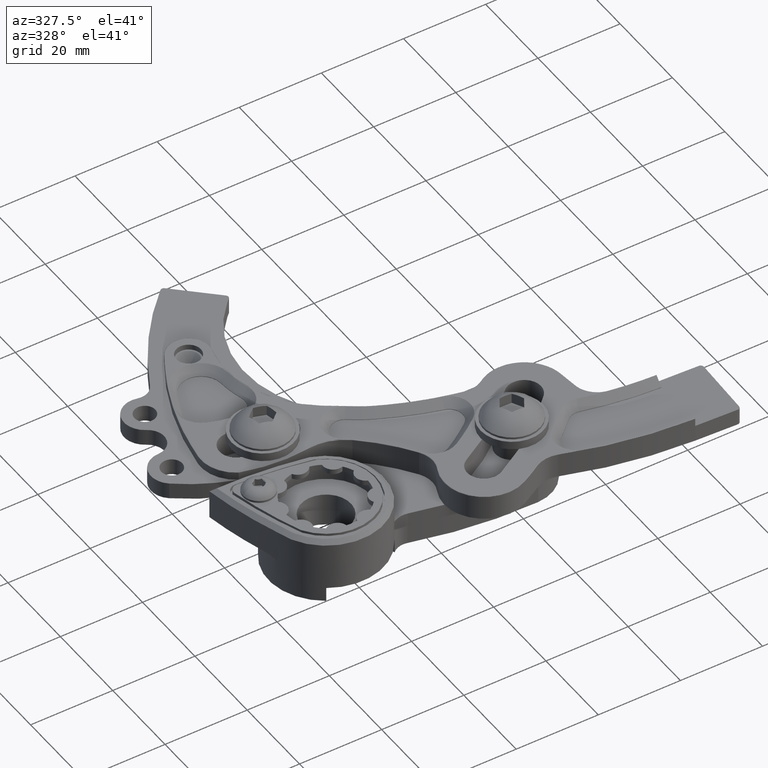
[diagram: clean part render]
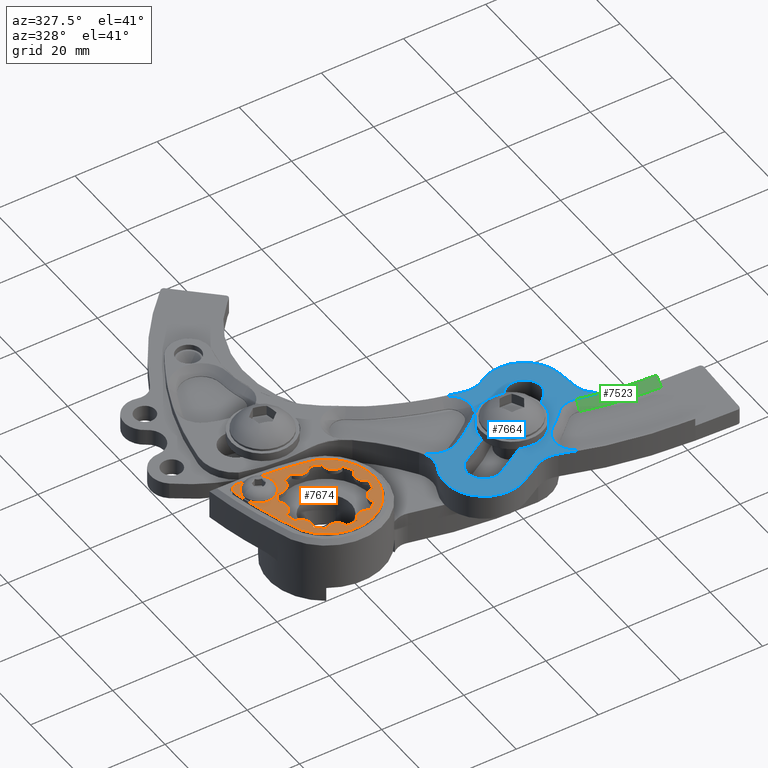
[diagram: same view with three faces highlighted in distinct colors, each labeled with its STEP entity id]
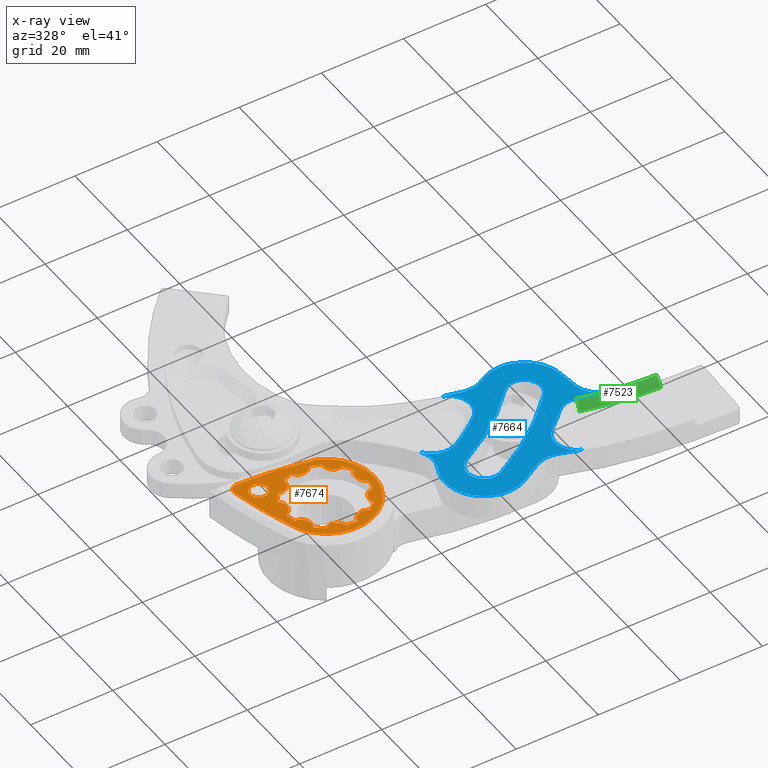
[diagram: x-ray of the same camera — body ghosted, the three highlighted faces saturated]
A machine part, auxiliary view with three faces highlighted in distinct colors.
The next image is the same camera in x-ray (body ghosted, the three faces saturated) — at least one of them is partly hidden behind the body in this view.
Their STEP definitions:

[orange] entity #7674 — the highlighted planar face has unit normal (0, 0, -1).
#106 = CIRCLE ( 'NONE', #2451, 3.985000488875817900 ) ;
#112 = CIRCLE ( 'NONE', #2452, 0.4611811023622030500 ) ;
#114 = CIRCLE ( 'NONE', #2453, 0.08374015748031497800 ) ;
#307 = FACE_BOUND ( 'NONE', #5723, .T. ) ;
#948 = CIRCLE ( 'NONE', #8326, 0.09842519685039379000 ) ;
#951 = CIRCLE ( 'NONE', #8325, 0.3917322834645669500 ) ;
#1211 = FACE_BOUND ( 'NONE', #5722, .T. ) ;
#1529 = CARTESIAN_POINT ( 'NONE',  ( -0.3737044721611517100, -0.1174697807741158900, 0.0000000000000000000 ) ) ;
#1540 = CARTESIAN_POINT ( 'NONE',  ( 0.1502255315932261000, -0.3617823538619545100, 0.0000000000000000000 ) ) ;
#1543 = CARTESIAN_POINT ( 'NONE',  ( -0.3884254748819968600, 0.05079205027422158800, 0.0000000000000000000 ) ) ;
#1545 = CARTESIAN_POINT ( 'NONE',  ( -0.1805782514277598200, 0.3476286481572780600, 0.0000000000000000000 ) ) ;
#1546 = CARTESIAN_POINT ( 'NONE',  ( 0.08512042175320269600, 0.3823724567864696900, 0.0000000000000000000 ) ) ;
#1547 = CARTESIAN_POINT ( 'NONE',  ( -0.01742897097123137200, 0.3913443661013247800, 0.0000000000000000000 ) ) ;
#1569 = CARTESIAN_POINT ( 'NONE',  ( 0.3476286481572807800, -0.1805782514277544700, 0.0000000000000000000 ) ) ;
#1574 = CARTESIAN_POINT ( 'NONE',  ( -0.2649026760123583400, 0.2885840504079449400, 0.0000000000000000000 ) ) ;
#1576 = CARTESIAN_POINT ( 'NONE',  ( -0.3337936621227553000, -0.3182291631869964600, 0.0000000000000000000 ) ) ;
#1577 = CARTESIAN_POINT ( 'NONE',  ( -0.2107661146735653700, -0.3301996771860525900, 0.0000000000000000000 ) ) ;
#1578 = CARTESIAN_POINT ( 'NONE',  ( 0.3913443661013252300, -0.01742897097122547400, 0.0000000000000000000 ) ) ;
#1585 = CARTESIAN_POINT ( 'NONE',  ( 0.2381999432887707800, 0.3109903035877328300, 0.0000000000000000000 ) ) ;
#1586 = CARTESIAN_POINT ( 'NONE',  ( 0.3823724567864685300, 0.08512042175320833100, 0.0000000000000000000 ) ) ;
#1587 = CARTESIAN_POINT ( 'NONE',  ( 0.3590586446260993800, -0.6438766151596402300, 0.0000000000000000000 ) ) ;
#1592 = CARTESIAN_POINT ( 'NONE',  ( 0.2589556442495657400, -0.6905190210382914400, 0.0000000000000000000 ) ) ;
#1594 = CARTESIAN_POINT ( 'NONE',  ( -0.1174697807741101700, -0.3737044721611534300, 0.0000000000000000000 ) ) ;
#1605 = CARTESIAN_POINT ( 'NONE',  ( -0.3617823538619567800, 0.1502255315932206100, 0.0000000000000000000 ) ) ;
#1611 = CARTESIAN_POINT ( 'NONE',  ( 0.3109903035877292200, 0.2381999432887755000, 0.0000000000000000000 ) ) ;
#1617 = CARTESIAN_POINT ( 'NONE',  ( -0.3301996771860494200, -0.2107661146735703400, 0.0000000000000000000 ) ) ;
#1620 = CARTESIAN_POINT ( 'NONE',  ( 0.4561326280009242500, 0.06805170717174031900, 0.0000000000000000000 ) ) ;
#1632 = CARTESIAN_POINT ( 'NONE',  ( 0.05079205027422756300, -0.3884254748819960200, 0.0000000000000000000 ) ) ;
#1634 = CARTESIAN_POINT ( 'NONE',  ( 0.2885840504079490400, -0.2649026760123540100, 0.0000000000000000000 ) ) ;
#1767 = CARTESIAN_POINT ( 'NONE',  ( 2.073889257765729100, 2.857190785987878000, 0.0000000000000000000 ) ) ;
#1768 = DIRECTION ( 'NONE',  ( 0.0000000000000000000, 0.0000000000000000000, 1.000000000000000000 ) ) ;
#1769 = DIRECTION ( 'NONE',  ( 1.000000000000000000, 0.0000000000000000000, 0.0000000000000000000 ) ) ;
#1773 = CARTESIAN_POINT ( 'NONE',  ( 1.092739197465705300E-015, -1.365923996832131600E-016, 0.0000000000000000000 ) ) ;
#1774 = DIRECTION ( 'NONE',  ( 0.0000000000000000000, 0.0000000000000000000, 1.000000000000000000 ) ) ;
#1775 = DIRECTION ( 'NONE',  ( 1.000000000000000000, 0.0000000000000000000, 0.0000000000000000000 ) ) ;
#1777 = CARTESIAN_POINT ( 'NONE',  ( 0.2298964812077702600, -0.4974140398124422500, 0.0000000000000000000 ) ) ;
#1778 = DIRECTION ( 'NONE',  ( 0.0000000000000000000, 0.0000000000000000000, 1.000000000000000000 ) ) ;
#1779 = DIRECTION ( 'NONE',  ( 1.000000000000000000, 0.0000000000000000000, 0.0000000000000000000 ) ) ;
#1971 = CARTESIAN_POINT ( 'NONE',  ( 0.0000000000000000000, 0.0000000000000000000, 0.0000000000000000000 ) ) ;
#1972 = DIRECTION ( 'NONE',  ( 0.0000000000000000000, 0.0000000000000000000, 1.000000000000000000 ) ) ;
#1973 = DIRECTION ( 'NONE',  ( 1.000000000000000000, 0.0000000000000000000, 0.0000000000000000000 ) ) ;
#1975 = CARTESIAN_POINT ( 'NONE',  ( 0.4183143342196762900, -0.1120869880365216000, 0.0000000000000000000 ) ) ;
#1976 = DIRECTION ( 'NONE',  ( -0.0000000000000000000, -0.0000000000000000000, -1.000000000000000000 ) ) ;
#1977 = DIRECTION ( 'NONE',  ( 1.000000000000000000, 0.0000000000000000000, 0.0000000000000000000 ) ) ;
#2188 = EDGE_CURVE ( 'NONE', #7099, #7117, #106, .T. ) ;
#2191 = EDGE_CURVE ( 'NONE', #7149, #7099, #112, .T. ) ;
#2192 = EDGE_CURVE ( 'NONE', #4857, #4857, #114, .T. ) ;
#2451 = AXIS2_PLACEMENT_3D ( 'NONE', #1767, #1768, #1769 ) ;
#2452 = AXIS2_PLACEMENT_3D ( 'NONE', #1773, #1774, #1775 ) ;
#2453 = AXIS2_PLACEMENT_3D ( 'NONE', #1777, #1778, #1779 ) ;
#2908 = EDGE_CURVE ( 'NONE', #7119, #7163, #4841, .T. ) ;
#2911 = EDGE_CURVE ( 'NONE', #7145, #7101, #4839, .T. ) ;
#2914 = EDGE_CURVE ( 'NONE', #5698, #7165, #4837, .T. ) ;
#2920 = EDGE_CURVE ( 'NONE', #7163, #5698, #4833, .T. ) ;
#2932 = EDGE_CURVE ( 'NONE', #5663, #7145, #4825, .T. ) ;
#4025 = DIRECTION ( 'NONE',  ( 0.0000000000000000000, 0.0000000000000000000, 1.000000000000000000 ) ) ;
#4029 = CARTESIAN_POINT ( 'NONE',  ( -1.760902721645291300, 0.1239377470939716400, 0.0000000000000000000 ) ) ;
#4030 = PLANE ( 'NONE',  #8450 ) ;
#4031 = DIRECTION ( 'NONE',  ( 1.000000000000000000, 0.0000000000000000000, -0.0000000000000000000 ) ) ;
#4257 = FACE_OUTER_BOUND ( 'NONE', #5666, .T. ) ;
#4483 = CIRCLE ( 'NONE', #8560, 0.09842519685039379000 ) ;
#4484 = CIRCLE ( 'NONE', #8563, 0.09842519685039379000 ) ;
#4490 = CIRCLE ( 'NONE', #8567, 0.07000000000000007600 ) ;
#4491 = CIRCLE ( 'NONE', #8571, 0.3917322834645669500 ) ;
#4498 = CIRCLE ( 'NONE', #8572, 3.982000488875817800 ) ;
#4506 = CIRCLE ( 'NONE', #8574, 0.3917322834645669500 ) ;
#4745 = CIRCLE ( 'NONE', #8635, 0.3917322834645669500 ) ;
#4751 = CIRCLE ( 'NONE', #8632, 0.09842519685039379000 ) ;
#4757 = CIRCLE ( 'NONE', #8634, 0.09842519685039376200 ) ;
#4775 = CIRCLE ( 'NONE', #8637, 0.3917322834645669500 ) ;
#4813 = CIRCLE ( 'NONE', #8651, 0.3917322834645669000 ) ;
#4821 = CIRCLE ( 'NONE', #8655, 0.09842519685039385900 ) ;
#4825 = CIRCLE ( 'NONE', #8657, 0.3917322834645669500 ) ;
#4833 = CIRCLE ( 'NONE', #8661, 0.3917322834645669500 ) ;
#4837 = CIRCLE ( 'NONE', #8663, 0.09842519685039379000 ) ;
#4839 = CIRCLE ( 'NONE', #8664, 0.09842519685039385900 ) ;
#4841 = CIRCLE ( 'NONE', #8665, 0.09842519685039387300 ) ;
#4842 = CIRCLE ( 'NONE', #8666, 0.3917322834645669500 ) ;
#4857 = VERTEX_POINT ( 'NONE', #6743 ) ;
#5663 = VERTEX_POINT ( 'NONE', #1529 ) ;
#5666 = EDGE_LOOP ( 'NONE', ( #7078, #7077, #7076, #7075 ) ) ;
#5698 = VERTEX_POINT ( 'NONE', #1540 ) ;
#5707 = VERTEX_POINT ( 'NONE', #1543 ) ;
#5721 = VERTEX_POINT ( 'NONE', #1545 ) ;
#5722 = EDGE_LOOP ( 'NONE', ( #6844 ) ) ;
#5723 = EDGE_LOOP ( 'NONE', ( #7068, #7065, #7067, #7070, #7059, #7066, #7074, #7057, #7073, #7072, #7086, #7085, #7084, #7083, #7082, #7081, #7080, #7079 ) ) ;
#5726 = VERTEX_POINT ( 'NONE', #1546 ) ;
#5730 = VERTEX_POINT ( 'NONE', #1547 ) ;
#5922 = CARTESIAN_POINT ( 'NONE',  ( 0.3924954983229573800, 0.1830236566593610700, 0.0000000000000000000 ) ) ;
#5923 = DIRECTION ( 'NONE',  ( -0.0000000000000000000, -0.0000000000000000000, -1.000000000000000000 ) ) ;
#5924 = DIRECTION ( 'NONE',  ( 1.000000000000000000, 0.0000000000000000000, 0.0000000000000000000 ) ) ;
#5931 = CARTESIAN_POINT ( 'NONE',  ( 0.1830236566593550800, 0.3924954983229601000, 0.0000000000000000000 ) ) ;
#5932 = DIRECTION ( 'NONE',  ( -0.0000000000000000000, -0.0000000000000000000, -1.000000000000000000 ) ) ;
#5933 = DIRECTION ( 'NONE',  ( 1.000000000000000000, 0.0000000000000000000, 0.0000000000000000000 ) ) ;
#5943 = CARTESIAN_POINT ( 'NONE',  ( 0.2908365319184079700, -0.6282004122488883400, 0.0000000000000000000 ) ) ;
#5944 = DIRECTION ( 'NONE',  ( 0.0000000000000000000, 0.0000000000000000000, 1.000000000000000000 ) ) ;
#5945 = DIRECTION ( 'NONE',  ( -1.000000000000000000, 0.0000000000000000000, 0.0000000000000000000 ) ) ;
#5959 = CARTESIAN_POINT ( 'NONE',  ( 0.0000000000000000000, 0.0000000000000000000, 0.0000000000000000000 ) ) ;
#5960 = DIRECTION ( 'NONE',  ( 0.0000000000000000000, 0.0000000000000000000, 1.000000000000000000 ) ) ;
#5961 = DIRECTION ( 'NONE',  ( 1.000000000000000000, 0.0000000000000000000, 0.0000000000000000000 ) ) ;
#5966 = CARTESIAN_POINT ( 'NONE',  ( -3.521805443290583900, 0.2478754941879434100, 0.0000000000000000000 ) ) ;
#5967 = DIRECTION ( 'NONE',  ( 0.0000000000000000000, 0.0000000000000000000, 1.000000000000000000 ) ) ;
#5968 = DIRECTION ( 'NONE',  ( 1.000000000000000000, 0.0000000000000000000, 0.0000000000000000000 ) ) ;
#5980 = CARTESIAN_POINT ( 'NONE',  ( 0.0000000000000000000, 0.0000000000000000000, 0.0000000000000000000 ) ) ;
#5981 = DIRECTION ( 'NONE',  ( 0.0000000000000000000, 0.0000000000000000000, 1.000000000000000000 ) ) ;
#5982 = DIRECTION ( 'NONE',  ( 1.000000000000000000, 0.0000000000000000000, 0.0000000000000000000 ) ) ;
#6452 = CARTESIAN_POINT ( 'NONE',  ( -0.3547508853220062700, 0.2483992440890331300, 0.0000000000000000000 ) ) ;
#6453 = DIRECTION ( 'NONE',  ( -0.0000000000000000000, -0.0000000000000000000, -1.000000000000000000 ) ) ;
#6455 = DIRECTION ( 'NONE',  ( 1.000000000000000000, 0.0000000000000000000, 0.0000000000000000000 ) ) ;
#6466 = CARTESIAN_POINT ( 'NONE',  ( -0.1120869880365279500, 0.4183143342196744600, 0.0000000000000000000 ) ) ;
#6468 = DIRECTION ( 'NONE',  ( -0.0000000000000000000, -0.0000000000000000000, -1.000000000000000000 ) ) ;
#6470 = DIRECTION ( 'NONE',  ( 1.000000000000000000, 0.0000000000000000000, 0.0000000000000000000 ) ) ;
#6475 = CARTESIAN_POINT ( 'NONE',  ( 0.0000000000000000000, 0.0000000000000000000, 0.0000000000000000000 ) ) ;
#6477 = DIRECTION ( 'NONE',  ( 0.0000000000000000000, 0.0000000000000000000, 1.000000000000000000 ) ) ;
#6479 = DIRECTION ( 'NONE',  ( 1.000000000000000000, 0.0000000000000000000, 0.0000000000000000000 ) ) ;
#6513 = CARTESIAN_POINT ( 'NONE',  ( 0.0000000000000000000, 0.0000000000000000000, 0.0000000000000000000 ) ) ;
#6515 = DIRECTION ( 'NONE',  ( 0.0000000000000000000, 0.0000000000000000000, 1.000000000000000000 ) ) ;
#6517 = DIRECTION ( 'NONE',  ( 1.000000000000000000, 0.0000000000000000000, 0.0000000000000000000 ) ) ;
#6622 = CARTESIAN_POINT ( 'NONE',  ( 0.0000000000000000000, 0.0000000000000000000, 0.0000000000000000000 ) ) ;
#6624 = DIRECTION ( 'NONE',  ( 0.0000000000000000000, 0.0000000000000000000, 1.000000000000000000 ) ) ;
#6626 = DIRECTION ( 'NONE',  ( 1.000000000000000000, 0.0000000000000000000, 0.0000000000000000000 ) ) ;
#6651 = CARTESIAN_POINT ( 'NONE',  ( -0.4314229007483939000, -0.03774461300095773700, 0.0000000000000000000 ) ) ;
#6653 = DIRECTION ( 'NONE',  ( -0.0000000000000000000, -0.0000000000000000000, -1.000000000000000000 ) ) ;
#6655 = DIRECTION ( 'NONE',  ( 1.000000000000000000, 0.0000000000000000000, 0.0000000000000000000 ) ) ;
#6666 = CARTESIAN_POINT ( 'NONE',  ( 0.0000000000000000000, 0.0000000000000000000, 0.0000000000000000000 ) ) ;
#6668 = DIRECTION ( 'NONE',  ( 0.0000000000000000000, 0.0000000000000000000, 1.000000000000000000 ) ) ;
#6669 = DIRECTION ( 'NONE',  ( 1.000000000000000000, 0.0000000000000000000, 0.0000000000000000000 ) ) ;
#6695 = CARTESIAN_POINT ( 'NONE',  ( 0.0000000000000000000, 0.0000000000000000000, 0.0000000000000000000 ) ) ;
#6697 = DIRECTION ( 'NONE',  ( 0.0000000000000000000, 0.0000000000000000000, 1.000000000000000000 ) ) ;
#6699 = DIRECTION ( 'NONE',  ( 1.000000000000000000, 0.0000000000000000000, 0.0000000000000000000 ) ) ;
#6709 = CARTESIAN_POINT ( 'NONE',  ( 0.2483992440890385700, -0.3547508853220026600, 0.0000000000000000000 ) ) ;
#6711 = DIRECTION ( 'NONE',  ( -0.0000000000000000000, -0.0000000000000000000, -1.000000000000000000 ) ) ;
#6713 = DIRECTION ( 'NONE',  ( 1.000000000000000000, 0.0000000000000000000, 0.0000000000000000000 ) ) ;
#6717 = CARTESIAN_POINT ( 'NONE',  ( -0.3062273461831484000, -0.3062273461831531700, 0.0000000000000000000 ) ) ;
#6719 = DIRECTION ( 'NONE',  ( -0.0000000000000000000, -0.0000000000000000000, -1.000000000000000000 ) ) ;
#6720 = DIRECTION ( 'NONE',  ( 1.000000000000000000, 0.0000000000000000000, 0.0000000000000000000 ) ) ;
#6725 = CARTESIAN_POINT ( 'NONE',  ( -0.03774461300095104800, -0.4314229007483944000, 0.0000000000000000000 ) ) ;
#6727 = DIRECTION ( 'NONE',  ( -0.0000000000000000000, -0.0000000000000000000, -1.000000000000000000 ) ) ;
#6729 = DIRECTION ( 'NONE',  ( 1.000000000000000000, 0.0000000000000000000, 0.0000000000000000000 ) ) ;
#6734 = CARTESIAN_POINT ( 'NONE',  ( 0.0000000000000000000, 0.0000000000000000000, 0.0000000000000000000 ) ) ;
#6736 = DIRECTION ( 'NONE',  ( 0.0000000000000000000, 0.0000000000000000000, 1.000000000000000000 ) ) ;
#6738 = DIRECTION ( 'NONE',  ( 1.000000000000000000, 0.0000000000000000000, 0.0000000000000000000 ) ) ;
#6743 = CARTESIAN_POINT ( 'NONE',  ( 0.3136366386880852200, -0.4974140398124422500, 0.0000000000000000000 ) ) ;
#6844 = ORIENTED_EDGE ( 'NONE', *, *, #2192, .T. ) ;
#7057 = ORIENTED_EDGE ( 'NONE', *, *, #9126, .T. ) ;
#7059 = ORIENTED_EDGE ( 'NONE', *, *, #9124, .T. ) ;
#7065 = ORIENTED_EDGE ( 'NONE', *, *, #9097, .T. ) ;
#7066 = ORIENTED_EDGE ( 'NONE', *, *, #2932, .T. ) ;
#7067 = ORIENTED_EDGE ( 'NONE', *, *, #9094, .T. ) ;
#7068 = ORIENTED_EDGE ( 'NONE', *, *, #9096, .T. ) ;
#7070 = ORIENTED_EDGE ( 'NONE', *, *, #9104, .T. ) ;
#7072 = ORIENTED_EDGE ( 'NONE', *, *, #2920, .T. ) ;
#7073 = ORIENTED_EDGE ( 'NONE', *, *, #2908, .T. ) ;
#7074 = ORIENTED_EDGE ( 'NONE', *, *, #2911, .T. ) ;
#7075 = ORIENTED_EDGE ( 'NONE', *, *, #2191, .F. ) ;
#7076 = ORIENTED_EDGE ( 'NONE', *, *, #2188, .F. ) ;
#7077 = ORIENTED_EDGE ( 'NONE', *, *, #7930, .F. ) ;
#7078 = ORIENTED_EDGE ( 'NONE', *, *, #7938, .F. ) ;
#7079 = ORIENTED_EDGE ( 'NONE', *, *, #9120, .T. ) ;
#7080 = ORIENTED_EDGE ( 'NONE', *, *, #7926, .T. ) ;
#7081 = ORIENTED_EDGE ( 'NONE', *, *, #7943, .T. ) ;
#7082 = ORIENTED_EDGE ( 'NONE', *, *, #7923, .T. ) ;
#7083 = ORIENTED_EDGE ( 'NONE', *, *, #7934, .T. ) ;
#7084 = ORIENTED_EDGE ( 'NONE', *, *, #7465, .T. ) ;
#7085 = ORIENTED_EDGE ( 'NONE', *, *, #7464, .T. ) ;
#7086 = ORIENTED_EDGE ( 'NONE', *, *, #2914, .T. ) ;
#7092 = VERTEX_POINT ( 'NONE', #1569 ) ;
#7096 = VERTEX_POINT ( 'NONE', #1574 ) ;
#7099 = VERTEX_POINT ( 'NONE', #1576 ) ;
#7101 = VERTEX_POINT ( 'NONE', #1577 ) ;
#7103 = VERTEX_POINT ( 'NONE', #1578 ) ;
#7110 = VERTEX_POINT ( 'NONE', #1585 ) ;
#7111 = VERTEX_POINT ( 'NONE', #1586 ) ;
#7112 = VERTEX_POINT ( 'NONE', #1587 ) ;
#7117 = VERTEX_POINT ( 'NONE', #1592 ) ;
#7119 = VERTEX_POINT ( 'NONE', #1594 ) ;
#7132 = VERTEX_POINT ( 'NONE', #1605 ) ;
#7145 = VERTEX_POINT ( 'NONE', #1617 ) ;
#7148 = VERTEX_POINT ( 'NONE', #1611 ) ;
#7149 = VERTEX_POINT ( 'NONE', #1620 ) ;
#7163 = VERTEX_POINT ( 'NONE', #1632 ) ;
#7165 = VERTEX_POINT ( 'NONE', #1634 ) ;
#7464 = EDGE_CURVE ( 'NONE', #7165, #7092, #951, .T. ) ;
#7465 = EDGE_CURVE ( 'NONE', #7092, #7103, #948, .T. ) ;
#7674 = ADVANCED_FACE ( 'NONE', ( #307, #4257, #1211 ), #4030, .F. ) ;
#7923 = EDGE_CURVE ( 'NONE', #7111, #7148, #4483, .T. ) ;
#7926 = EDGE_CURVE ( 'NONE', #7110, #5726, #4484, .T. ) ;
#7930 = EDGE_CURVE ( 'NONE', #7117, #7112, #4490, .T. ) ;
#7934 = EDGE_CURVE ( 'NONE', #7103, #7111, #4491, .T. ) ;
#7938 = EDGE_CURVE ( 'NONE', #7112, #7149, #4498, .T. ) ;
#7943 = EDGE_CURVE ( 'NONE', #7148, #7110, #4506, .T. ) ;
#8325 = AXIS2_PLACEMENT_3D ( 'NONE', #1971, #1972, #1973 ) ;
#8326 = AXIS2_PLACEMENT_3D ( 'NONE', #1975, #1976, #1977 ) ;
#8450 = AXIS2_PLACEMENT_3D ( 'NONE', #4029, #4025, #4031 ) ;
#8560 = AXIS2_PLACEMENT_3D ( 'NONE', #5922, #5923, #5924 ) ;
#8563 = AXIS2_PLACEMENT_3D ( 'NONE', #5931, #5932, #5933 ) ;
#8567 = AXIS2_PLACEMENT_3D ( 'NONE', #5943, #5944, #5945 ) ;
#8571 = AXIS2_PLACEMENT_3D ( 'NONE', #5959, #5960, #5961 ) ;
#8572 = AXIS2_PLACEMENT_3D ( 'NONE', #5966, #5967, #5968 ) ;
#8574 = AXIS2_PLACEMENT_3D ( 'NONE', #5980, #5981, #5982 ) ;
#8632 = AXIS2_PLACEMENT_3D ( 'NONE', #6452, #6453, #6455 ) ;
#8634 = AXIS2_PLACEMENT_3D ( 'NONE', #6466, #6468, #6470 ) ;
#8635 = AXIS2_PLACEMENT_3D ( 'NONE', #6475, #6477, #6479 ) ;
#8637 = AXIS2_PLACEMENT_3D ( 'NONE', #6513, #6515, #6517 ) ;
#8651 = AXIS2_PLACEMENT_3D ( 'NONE', #6622, #6624, #6626 ) ;
#8655 = AXIS2_PLACEMENT_3D ( 'NONE', #6651, #6653, #6655 ) ;
#8657 = AXIS2_PLACEMENT_3D ( 'NONE', #6666, #6668, #6669 ) ;
#8661 = AXIS2_PLACEMENT_3D ( 'NONE', #6695, #6697, #6699 ) ;
#8663 = AXIS2_PLACEMENT_3D ( 'NONE', #6709, #6711, #6713 ) ;
#8664 = AXIS2_PLACEMENT_3D ( 'NONE', #6717, #6719, #6720 ) ;
#8665 = AXIS2_PLACEMENT_3D ( 'NONE', #6725, #6727, #6729 ) ;
#8666 = AXIS2_PLACEMENT_3D ( 'NONE', #6734, #6736, #6738 ) ;
#9094 = EDGE_CURVE ( 'NONE', #7096, #7132, #4751, .T. ) ;
#9096 = EDGE_CURVE ( 'NONE', #5730, #5721, #4757, .T. ) ;
#9097 = EDGE_CURVE ( 'NONE', #5721, #7096, #4745, .T. ) ;
#9104 = EDGE_CURVE ( 'NONE', #7132, #5707, #4775, .T. ) ;
#9120 = EDGE_CURVE ( 'NONE', #5726, #5730, #4813, .T. ) ;
#9124 = EDGE_CURVE ( 'NONE', #5707, #5663, #4821, .T. ) ;
#9126 = EDGE_CURVE ( 'NONE', #7101, #7119, #4842, .T. ) ;

[blue] entity #7664 — the highlighted planar face has unit normal (0, 0, 1).
#311 = CIRCLE ( 'NONE', #2539, 0.2050000000002378000 ) ;
#706 = CARTESIAN_POINT ( 'NONE',  ( 7.433796921724963100, -1.199378007615003800, -0.2329999999998592100 ) ) ;
#707 = DIRECTION ( 'NONE',  ( -5.084455053182305500E-030, 1.747819943130306000E-029, -1.000000000000000000 ) ) ;
#708 = DIRECTION ( 'NONE',  ( 1.000000000000000000, 3.331521943489139500E-015, 0.0000000000000000000 ) ) ;
#710 = CARTESIAN_POINT ( 'NONE',  ( 10.70820394135996300, -0.9235978963070037300, -0.2329999999999997100 ) ) ;
#711 = DIRECTION ( 'NONE',  ( -5.084455053182305500E-030, 1.747819943130306000E-029, -1.000000000000000000 ) ) ;
#712 = DIRECTION ( 'NONE',  ( 1.000000000000000000, 7.775836195957975800E-015, 0.0000000000000000000 ) ) ;
#716 = CARTESIAN_POINT ( 'NONE',  ( 10.70820394135996300, -0.9235978963070037300, -0.2329999999975032900 ) ) ;
#717 = DIRECTION ( 'NONE',  ( 5.084455053182305500E-030, -1.747819943130306000E-029, 1.000000000000000000 ) ) ;
#718 = DIRECTION ( 'NONE',  ( -1.000000000000000000, 2.216689381420705600E-016, 0.0000000000000000000 ) ) ;
#750 = CARTESIAN_POINT ( 'NONE',  ( 8.486733213124409800, -0.9273462209459981700, -0.2329999999999997400 ) ) ;
#755 = CARTESIAN_POINT ( 'NONE',  ( 8.541367225659328700, -0.9606730551059455800, -0.2329999999999997400 ) ) ;
#757 = CARTESIAN_POINT ( 'NONE',  ( 8.433195038962043800, -0.8922860283034986800, -0.2329999999999997100 ) ) ;
#758 = CARTESIAN_POINT ( 'NONE',  ( 8.597040977303422000, -0.9922323101448684600, -0.2330000000003258900 ) ) ;
#762 = CIRCLE ( 'NONE', #2540, 2.915999999999990600 ) ;
#763 = CIRCLE ( 'NONE', #2542, 3.081000000001562700 ) ;
#791 = LINE ( 'NONE', #1259, #798 ) ;
#797 = CIRCLE ( 'NONE', #2560, 0.2049999999996083800 ) ;
#798 = VECTOR ( 'NONE', #1254, 39.37007874015748900 ) ;
#858 = CIRCLE ( 'NONE', #2595, 2.595999999999991600 ) ;
#859 = CIRCLE ( 'NONE', #2596, 0.1599999999999993900 ) ;
#862 = CIRCLE ( 'NONE', #2597, 0.1599999999999993900 ) ;
#918 = CIRCLE ( 'NONE', #8310, 0.2049999999960624400 ) ;
#935 = CIRCLE ( 'NONE', #8319, 0.2250000000006424600 ) ;
#941 = CIRCLE ( 'NONE', #8320, 3.406080047429539600 ) ;
#950 = CIRCLE ( 'NONE', #8324, 2.431000000002043700 ) ;
#1199 = FACE_BOUND ( 'NONE', #8997, .T. ) ;
#1203 = FACE_OUTER_BOUND ( 'NONE', #9007, .T. ) ;
#1215 = CARTESIAN_POINT ( 'NONE',  ( 8.433195038962043800, -0.8922860283034986800, -0.2329999999999997100 ) ) ;
#1225 = CARTESIAN_POINT ( 'NONE',  ( 8.375092742889661300, -0.8542369591080032400, -0.2329999999999996800 ) ) ;
#1229 = CARTESIAN_POINT ( 'NONE',  ( 8.336260709062289100, -0.7966550033895384300, -0.2329999999999996800 ) ) ;
#1230 = CARTESIAN_POINT ( 'NONE',  ( 8.322759904531835700, -0.7285276465307347600, -0.2329999999999997100 ) ) ;
#1235 = CARTESIAN_POINT ( 'NONE',  ( 8.322759904531835700, -0.7285276465307347600, -0.2329999999999997100 ) ) ;
#1236 = CARTESIAN_POINT ( 'NONE',  ( 8.261898095118162600, -0.4214086004297464300, -0.2329999999999997100 ) ) ;
#1240 = CARTESIAN_POINT ( 'NONE',  ( 7.968143174370493600, -0.3130835578051568400, -0.2329999999999997100 ) ) ;
#1241 = CARTESIAN_POINT ( 'NONE',  ( 7.722460131187948400, -0.5071611469689030200, -0.2329999999999997600 ) ) ;
#1242 = CARTESIAN_POINT ( 'NONE',  ( 7.384123082244514100, -0.6926424575758241000, -0.2329999999999997400 ) ) ;
#1243 = CARTESIAN_POINT ( 'NONE',  ( 7.491130198183430600, -0.6899004810208329000, -0.2329999999999997400 ) ) ;
#1248 = CARTESIAN_POINT ( 'NONE',  ( 7.575126301568021200, -0.6235476671151714000, -0.2329999999999997600 ) ) ;
#1249 = CARTESIAN_POINT ( 'NONE',  ( 7.296838960267180600, -0.6306785701274345600, -0.2330000000000631600 ) ) ;
#1254 = DIRECTION ( 'NONE',  ( -0.7847005334029264500, -0.6198750461804076700, 6.856310602018569400E-030 ) ) ;
#1259 = CARTESIAN_POINT ( 'NONE',  ( 7.722460131187970600, -0.5071611469688996900, -0.2329999999999997600 ) ) ;
#1278 = CARTESIAN_POINT ( 'NONE',  ( 7.422371524709964400, -0.9567841844389017900, -0.2329999999998592900 ) ) ;
#1279 = DIRECTION ( 'NONE',  ( -5.084455053182305500E-030, 1.747819943130306000E-029, -1.000000000000000000 ) ) ;
#1280 = DIRECTION ( 'NONE',  ( 1.000000000000000000, -7.329348275698609100E-015, 0.0000000000000000000 ) ) ;
#1314 = CARTESIAN_POINT ( 'NONE',  ( 7.397456004481481900, -1.413246558656422200, -0.2329999999999997400 ) ) ;
#1316 = CARTESIAN_POINT ( 'NONE',  ( 7.460558004046926200, -1.445705102080527400, -0.2329999999999997400 ) ) ;
#1332 = CARTESIAN_POINT ( 'NONE',  ( 7.335235107879038100, -1.379129416097868400, -0.2329999999999528600 ) ) ;
#1333 = CARTESIAN_POINT ( 'NONE',  ( 7.524496903847766500, -1.476482309275132200, -0.2329999999999997100 ) ) ;
#1337 = CARTESIAN_POINT ( 'NONE',  ( 7.524496903847766500, -1.476482309275132200, -0.2329999999999997100 ) ) ;
#1344 = CARTESIAN_POINT ( 'NONE',  ( 7.594920671377023400, -1.510381029638540000, -0.2329999999999997400 ) ) ;
#1348 = CARTESIAN_POINT ( 'NONE',  ( 7.643926698671561000, -1.571266492304756600, -0.2329999999999997400 ) ) ;
#1349 = CARTESIAN_POINT ( 'NONE',  ( 7.661992336498761900, -1.647307685122780600, -0.2329999999999997600 ) ) ;
#1353 = CARTESIAN_POINT ( 'NONE',  ( 7.661992336498761900, -1.647307685122780600, -0.2329999999999997600 ) ) ;
#1354 = CARTESIAN_POINT ( 'NONE',  ( 7.679236807911046900, -1.719892455625406000, -0.2329999999999997100 ) ) ;
#1358 = CARTESIAN_POINT ( 'NONE',  ( 7.699063478342334400, -1.791814801546629500, -0.2329999999999997100 ) ) ;
#1359 = CARTESIAN_POINT ( 'NONE',  ( 7.721447033133008700, -1.862982892557094800, -0.2329999999999997600 ) ) ;
#1360 = CARTESIAN_POINT ( 'NONE',  ( 8.435798641574090000, -1.866411265755021400, -0.2329999999999997100 ) ) ;
#1364 = CARTESIAN_POINT ( 'NONE',  ( 7.721447033133008700, -1.862982892557094800, -0.2329999999999997600 ) ) ;
#1365 = CARTESIAN_POINT ( 'NONE',  ( 7.854635486137336600, -2.286453071128545100, -0.2329999999999997400 ) ) ;
#1369 = CARTESIAN_POINT ( 'NONE',  ( 8.298551713837955600, -2.288583549283965500, -0.2329999999999997400 ) ) ;
#1370 = CARTESIAN_POINT ( 'NONE',  ( 8.435798641574090000, -1.866411265755021400, -0.2329999999999997100 ) ) ;
#1374 = CARTESIAN_POINT ( 'NONE',  ( 8.463983557140393200, -1.779714314778566100, -0.2329999999999996800 ) ) ;
#1379 = CARTESIAN_POINT ( 'NONE',  ( 8.531057796938611700, -1.717974561543003500, -0.2329999999999996800 ) ) ;
#1380 = CARTESIAN_POINT ( 'NONE',  ( 8.619784778150101800, -1.697038025848306700, -0.2330168502206439500 ) ) ;
#1454 = CARTESIAN_POINT ( 'NONE',  ( 10.70820394135996300, -0.9235978963070037300, -0.2329999999999997100 ) ) ;
#1455 = DIRECTION ( 'NONE',  ( -5.084455053182305500E-030, 1.747819943130306000E-029, -1.000000000000000000 ) ) ;
#1456 = DIRECTION ( 'NONE',  ( 1.000000000000000000, 4.209318942471913500E-015, 0.0000000000000000000 ) ) ;
#1459 = CARTESIAN_POINT ( 'NONE',  ( 7.954913273504974600, -0.8014238469949985800, -0.2329999999999992400 ) ) ;
#1460 = DIRECTION ( 'NONE',  ( -5.084455053182305500E-030, 1.747819943130306000E-029, -1.000000000000000000 ) ) ;
#1461 = DIRECTION ( 'NONE',  ( 1.000000000000000000, 0.0000000000000000000, 0.0000000000000000000 ) ) ;
#1465 = CARTESIAN_POINT ( 'NONE',  ( 8.079171032040967800, -1.750472712553000900, -0.2329999999999997600 ) ) ;
#1466 = DIRECTION ( 'NONE',  ( -5.084455053182305500E-030, 1.747819943130306000E-029, -1.000000000000000000 ) ) ;
#1467 = DIRECTION ( 'NONE',  ( 1.000000000000000000, 0.0000000000000000000, 0.0000000000000000000 ) ) ;
#1680 = CARTESIAN_POINT ( 'NONE',  ( 8.597040977303422000, -0.9922323101448684600, -0.2330000000003258900 ) ) ;
#1881 = CARTESIAN_POINT ( 'NONE',  ( 8.495947224614967700, -1.170572022961005000, -0.2329999999998592900 ) ) ;
#1882 = DIRECTION ( 'NONE',  ( -5.084455053182305500E-030, 1.747819943130306000E-029, -1.000000000000000000 ) ) ;
#1883 = DIRECTION ( 'NONE',  ( 1.000000000000000000, 0.0000000000000000000, 0.0000000000000000000 ) ) ;
#1933 = CARTESIAN_POINT ( 'NONE',  ( 8.572735416947971000, -1.476960509122003100, -0.2329999999999997600 ) ) ;
#1934 = DIRECTION ( 'NONE',  ( -5.084455053182305500E-030, 1.747819943130306000E-029, -1.000000000000000000 ) ) ;
#1935 = DIRECTION ( 'NONE',  ( 1.000000000000000000, -2.428309327694633600E-015, 0.0000000000000000000 ) ) ;
#1940 = CARTESIAN_POINT ( 'NONE',  ( 9.268527513229967600, 2.146698887045992000, -0.2330000000003804600 ) ) ;
#1941 = DIRECTION ( 'NONE',  ( 5.084455053182305500E-030, -1.747819943130306000E-029, 1.000000000000000000 ) ) ;
#1942 = DIRECTION ( 'NONE',  ( -1.000000000000000000, -3.368611839304478100E-015, 0.0000000000000000000 ) ) ;
#1967 = CARTESIAN_POINT ( 'NONE',  ( 10.70820394135995800, -0.9235978963072080100, -0.2330000000020370500 ) ) ;
#1968 = DIRECTION ( 'NONE',  ( 7.023467692461898000E-018, 1.746587347965898100E-029, -1.000000000000000000 ) ) ;
#1969 = DIRECTION ( 'NONE',  ( 1.000000000000000000, -2.247509661589441800E-016, 1.404693538493401100E-017 ) ) ;
#2338 = EDGE_CURVE ( 'NONE', #7839, #7898, #311, .T. ) ;
#2340 = EDGE_CURVE ( 'NONE', #9043, #9045, #762, .T. ) ;
#2342 = EDGE_CURVE ( 'NONE', #9032, #7839, #763, .T. ) ;
#2357 = EDGE_CURVE ( 'NONE', #7292, #9073, #3051, .T. ) ;
#2362 = EDGE_CURVE ( 'NONE', #9073, #7882, #3050, .T. ) ;
#2365 = EDGE_CURVE ( 'NONE', #7882, #7891, #3049, .T. ) ;
#2368 = EDGE_CURVE ( 'NONE', #9080, #7854, #3048, .T. ) ;
#2372 = EDGE_CURVE ( 'NONE', #7891, #9080, #791, .T. ) ;
#2374 = EDGE_CURVE ( 'NONE', #9060, #9032, #797, .T. ) ;
#2391 = EDGE_CURVE ( 'NONE', #7898, #9059, #3045, .T. ) ;
#2396 = EDGE_CURVE ( 'NONE', #9059, #8182, #3044, .T. ) ;
#2399 = EDGE_CURVE ( 'NONE', #8182, #9066, #3043, .T. ) ;
#2402 = EDGE_CURVE ( 'NONE', #9066, #7886, #8010, .T. ) ;
#2405 = EDGE_CURVE ( 'NONE', #7886, #7887, #8002, .T. ) ;
#2430 = EDGE_CURVE ( 'NONE', #9035, #7888, #858, .T. ) ;
#2431 = EDGE_CURVE ( 'NONE', #9045, #7888, #859, .T. ) ;
#2433 = EDGE_CURVE ( 'NONE', #9035, #9043, #862, .T. ) ;
#2539 = AXIS2_PLACEMENT_3D ( 'NONE', #706, #707, #708 ) ;
#2540 = AXIS2_PLACEMENT_3D ( 'NONE', #710, #711, #712 ) ;
#2542 = AXIS2_PLACEMENT_3D ( 'NONE', #716, #717, #718 ) ;
#2560 = AXIS2_PLACEMENT_3D ( 'NONE', #1278, #1279, #1280 ) ;
#2595 = AXIS2_PLACEMENT_3D ( 'NONE', #1454, #1455, #1456 ) ;
#2596 = AXIS2_PLACEMENT_3D ( 'NONE', #1459, #1460, #1461 ) ;
#2597 = AXIS2_PLACEMENT_3D ( 'NONE', #1465, #1466, #1467 ) ;
#2632 = ORIENTED_EDGE ( 'NONE', *, *, #7450, .F. ) ;
#2634 = ORIENTED_EDGE ( 'NONE', *, *, #2338, .F. ) ;
#2635 = ORIENTED_EDGE ( 'NONE', *, *, #2340, .F. ) ;
#2636 = ORIENTED_EDGE ( 'NONE', *, *, #2374, .F. ) ;
#2637 = ORIENTED_EDGE ( 'NONE', *, *, #2433, .F. ) ;
#2642 = ORIENTED_EDGE ( 'NONE', *, *, #7453, .F. ) ;
#2646 = ORIENTED_EDGE ( 'NONE', *, *, #2342, .F. ) ;
#2659 = ORIENTED_EDGE ( 'NONE', *, *, #2365, .F. ) ;
#2669 = ORIENTED_EDGE ( 'NONE', *, *, #2372, .F. ) ;
#2670 = ORIENTED_EDGE ( 'NONE', *, *, #7433, .F. ) ;
#2684 = ORIENTED_EDGE ( 'NONE', *, *, #2368, .F. ) ;
#2692 = ORIENTED_EDGE ( 'NONE', *, *, #2430, .T. ) ;
#2694 = ORIENTED_EDGE ( 'NONE', *, *, #2391, .F. ) ;
#2700 = ORIENTED_EDGE ( 'NONE', *, *, #2399, .F. ) ;
#2701 = ORIENTED_EDGE ( 'NONE', *, *, #7463, .F. ) ;
#2702 = ORIENTED_EDGE ( 'NONE', *, *, #2362, .F. ) ;
#2705 = ORIENTED_EDGE ( 'NONE', *, *, #2396, .F. ) ;
#2715 = ORIENTED_EDGE ( 'NONE', *, *, #2405, .F. ) ;
#2728 = ORIENTED_EDGE ( 'NONE', *, *, #2402, .F. ) ;
#2729 = ORIENTED_EDGE ( 'NONE', *, *, #2431, .F. ) ;
#2732 = ORIENTED_EDGE ( 'NONE', *, *, #2357, .F. ) ;
#3043 =( BOUNDED_CURVE ( )  B_SPLINE_CURVE ( 3, ( #1353, #1354, #1358, #1359 ),
 .UNSPECIFIED., .F., .T. ) 
 B_SPLINE_CURVE_WITH_KNOTS ( ( 4, 4 ),
 ( 0.0000000000000000000, 1.000000000000000000 ),
 .UNSPECIFIED. ) 
 CURVE ( )  GEOMETRIC_REPRESENTATION_ITEM ( )  RATIONAL_B_SPLINE_CURVE ( ( 1.000000000000000000, 0.9995744005657702900, 0.9995744005657702900, 1.000000000000000000 ) ) 
 REPRESENTATION_ITEM ( '' )  );
#3044 =( BOUNDED_CURVE ( )  B_SPLINE_CURVE ( 3, ( #1337, #1344, #1348, #1349 ),
 .UNSPECIFIED., .F., .F. ) 
 B_SPLINE_CURVE_WITH_KNOTS ( ( 4, 4 ),
 ( 0.0000000000000000000, 1.000000000000000000 ),
 .UNSPECIFIED. ) 
 CURVE ( )  GEOMETRIC_REPRESENTATION_ITEM ( )  RATIONAL_B_SPLINE_CURVE ( ( 1.000000000000000000, 0.9352280405808051100, 0.9352280405808051100, 1.000000000000000000 ) ) 
 REPRESENTATION_ITEM ( '' )  );
#3045 =( BOUNDED_CURVE ( )  B_SPLINE_CURVE ( 3, ( #1332, #1314, #1316, #1333 ),
 .UNSPECIFIED., .F., .F. ) 
 B_SPLINE_CURVE_WITH_KNOTS ( ( 4, 4 ),
 ( 0.0000000000000000000, 1.000000000000000000 ),
 .UNSPECIFIED. ) 
 CURVE ( )  GEOMETRIC_REPRESENTATION_ITEM ( )  RATIONAL_B_SPLINE_CURVE ( ( 1.000000000000000000, 0.9997665011758361000, 0.9997665011758361000, 1.000000000000000000 ) ) 
 REPRESENTATION_ITEM ( '' )  );
#3048 =( BOUNDED_CURVE ( )  B_SPLINE_CURVE ( 3, ( #1248, #1243, #1242, #1249 ),
 .UNSPECIFIED., .F., .T. ) 
 B_SPLINE_CURVE_WITH_KNOTS ( ( 4, 4 ),
 ( 0.0000000000000000000, 1.000000000000000000 ),
 .UNSPECIFIED. ) 
 CURVE ( )  GEOMETRIC_REPRESENTATION_ITEM ( )  RATIONAL_B_SPLINE_CURVE ( ( 1.000000000000000000, 0.8668811067961899000, 0.8668811067961899000, 1.000000000000000000 ) ) 
 REPRESENTATION_ITEM ( '' )  );
#3049 =( BOUNDED_CURVE ( )  B_SPLINE_CURVE ( 3, ( #1235, #1236, #1240, #1241 ),
 .UNSPECIFIED., .F., .T. ) 
 B_SPLINE_CURVE_WITH_KNOTS ( ( 4, 4 ),
 ( 0.0000000000000000000, 1.000000000000000000 ),
 .UNSPECIFIED. ) 
 CURVE ( )  GEOMETRIC_REPRESENTATION_ITEM ( )  RATIONAL_B_SPLINE_CURVE ( ( 1.000000000000000000, 0.6811798213921944600, 0.6811798213921944600, 1.000000000000000000 ) ) 
 REPRESENTATION_ITEM ( '' )  );
#3050 =( BOUNDED_CURVE ( )  B_SPLINE_CURVE ( 3, ( #757, #1225, #1229, #1230 ),
 .UNSPECIFIED., .F., .T. ) 
 B_SPLINE_CURVE_WITH_KNOTS ( ( 4, 4 ),
 ( 0.0000000000000000000, 1.000000000000000000 ),
 .UNSPECIFIED. ) 
 CURVE ( )  GEOMETRIC_REPRESENTATION_ITEM ( )  RATIONAL_B_SPLINE_CURVE ( ( 1.000000000000000000, 0.9479727907215026500, 0.9479727907215026500, 1.000000000000000000 ) ) 
 REPRESENTATION_ITEM ( '' )  );
#3051 =( BOUNDED_CURVE ( )  B_SPLINE_CURVE ( 3, ( #758, #755, #750, #1215 ),
 .UNSPECIFIED., .F., .T. ) 
 B_SPLINE_CURVE_WITH_KNOTS ( ( 4, 4 ),
 ( 0.0000000000000000000, 1.000000000000000000 ),
 .UNSPECIFIED. ) 
 CURVE ( )  GEOMETRIC_REPRESENTATION_ITEM ( )  RATIONAL_B_SPLINE_CURVE ( ( 1.000000000000000000, 0.9996577268755644200, 0.9996577268755644200, 1.000000000000000000 ) ) 
 REPRESENTATION_ITEM ( '' )  );
#3964 = DIRECTION ( 'NONE',  ( 5.069047613627220200E-030, 1.747819943130306000E-029, -1.000000000000000000 ) ) ;
#3967 = CARTESIAN_POINT ( 'NONE',  ( 0.0000000000000000000, 0.0000000000000000000, -0.2329999999999997100 ) ) ;
#3969 = PLANE ( 'NONE',  #8442 ) ;
#3971 = DIRECTION ( 'NONE',  ( 1.000000000000000000, -2.220446049250320500E-016, 5.069047613627216000E-030 ) ) ;
#5140 = CARTESIAN_POINT ( 'NONE',  ( 7.638073683450565800, -1.182173222825367000, -0.2329999999986812600 ) ) ;
#5149 = CARTESIAN_POINT ( 'NONE',  ( 7.296838960267180600, -0.6306785701274345600, -0.2330000000000631600 ) ) ;
#5151 = CARTESIAN_POINT ( 'NONE',  ( 8.435798641574090000, -1.866411265755021400, -0.2329999999999997100 ) ) ;
#5161 = CARTESIAN_POINT ( 'NONE',  ( 7.722460131187948400, -0.5071611469689030200, -0.2329999999999997600 ) ) ;
#5164 = CARTESIAN_POINT ( 'NONE',  ( 8.322759904531835700, -0.7285276465307347600, -0.2329999999999997100 ) ) ;
#5167 = CARTESIAN_POINT ( 'NONE',  ( 8.619784778150101800, -1.697038025848306700, -0.2330168502206439500 ) ) ;
#5168 = CARTESIAN_POINT ( 'NONE',  ( 8.114755982818280700, -0.8085166800466854200, -0.2329999999999997100 ) ) ;
#5170 = CARTESIAN_POINT ( 'NONE',  ( 7.335235107879038100, -1.379129416097868400, -0.2329999999999528600 ) ) ;
#6214 = CARTESIAN_POINT ( 'NONE',  ( 7.661992336498761900, -1.647307685122780600, -0.2329999999999997600 ) ) ;
#6358 = CARTESIAN_POINT ( 'NONE',  ( 7.627361069877350600, -0.9547138286668354100, -0.2329999999997857400 ) ) ;
#6375 = CARTESIAN_POINT ( 'NONE',  ( 8.231799938240381900, -1.702468369071681300, -0.2329999999999997600 ) ) ;
#6383 = CARTESIAN_POINT ( 'NONE',  ( 7.926542125841850300, -1.798477056020622700, -0.2329999999999997600 ) ) ;
#6385 = CARTESIAN_POINT ( 'NONE',  ( 7.795070564197867900, -0.7943310139427982600, -0.2329999999999997600 ) ) ;
#6399 = CARTESIAN_POINT ( 'NONE',  ( 7.524496903847766500, -1.476482309275132200, -0.2329999999999997100 ) ) ;
#6400 = CARTESIAN_POINT ( 'NONE',  ( 7.527177281623321100, -0.7806003221874012700, -0.2330000000001346500 ) ) ;
#6406 = CARTESIAN_POINT ( 'NONE',  ( 7.721447033133008700, -1.862982892557094800, -0.2329999999999997600 ) ) ;
#6408 = CARTESIAN_POINT ( 'NONE',  ( 8.292212890865970500, -1.193316720159163200, -0.2330000000009481400 ) ) ;
#6413 = CARTESIAN_POINT ( 'NONE',  ( 8.433195038962043800, -0.8922860283034986800, -0.2329999999999997100 ) ) ;
#6421 = CARTESIAN_POINT ( 'NONE',  ( 7.575126301568021200, -0.6235476671151714000, -0.2329999999999997600 ) ) ;
#6437 = CARTESIAN_POINT ( 'NONE',  ( 8.354929243788969700, -1.533400485496800900, -0.2329999999998959000 ) ) ;
#7292 = VERTEX_POINT ( 'NONE', #1680 ) ;
#7433 = EDGE_CURVE ( 'NONE', #9068, #7292, #918, .T. ) ;
#7450 = EDGE_CURVE ( 'NONE', #7887, #9089, #935, .T. ) ;
#7453 = EDGE_CURVE ( 'NONE', #7854, #9060, #941, .T. ) ;
#7463 = EDGE_CURVE ( 'NONE', #9089, #9068, #950, .T. ) ;
#7664 = ADVANCED_FACE ( 'NONE', ( #1199, #1203 ), #3969, .T. ) ;
#7839 = VERTEX_POINT ( 'NONE', #5140 ) ;
#7854 = VERTEX_POINT ( 'NONE', #5149 ) ;
#7882 = VERTEX_POINT ( 'NONE', #5164 ) ;
#7886 = VERTEX_POINT ( 'NONE', #5151 ) ;
#7887 = VERTEX_POINT ( 'NONE', #5167 ) ;
#7888 = VERTEX_POINT ( 'NONE', #5168 ) ;
#7891 = VERTEX_POINT ( 'NONE', #5161 ) ;
#7898 = VERTEX_POINT ( 'NONE', #5170 ) ;
#8002 =( BOUNDED_CURVE ( )  B_SPLINE_CURVE ( 3, ( #1360, #1374, #1379, #1380 ),
 .UNSPECIFIED., .F., .T. ) 
 B_SPLINE_CURVE_WITH_KNOTS ( ( 4, 4 ),
 ( 0.0000000000000000000, 1.000000000000000000 ),
 .UNSPECIFIED. ) 
 CURVE ( )  GEOMETRIC_REPRESENTATION_ITEM ( )  RATIONAL_B_SPLINE_CURVE ( ( 1.000000000000000000, 0.9143582685313048600, 0.9143582685313048600, 1.000000000000000000 ) ) 
 REPRESENTATION_ITEM ( '' )  );
#8010 =( BOUNDED_CURVE ( )  B_SPLINE_CURVE ( 3, ( #1364, #1365, #1369, #1370 ),
 .UNSPECIFIED., .F., .T. ) 
 B_SPLINE_CURVE_WITH_KNOTS ( ( 4, 4 ),
 ( 0.0000000000000000000, 1.000000000000000000 ),
 .UNSPECIFIED. ) 
 CURVE ( )  GEOMETRIC_REPRESENTATION_ITEM ( )  RATIONAL_B_SPLINE_CURVE ( ( 1.000000000000000000, 0.5364012125607078300, 0.5364012125607078300, 1.000000000000000000 ) ) 
 REPRESENTATION_ITEM ( '' )  );
#8182 = VERTEX_POINT ( 'NONE', #6214 ) ;
#8310 = AXIS2_PLACEMENT_3D ( 'NONE', #1881, #1882, #1883 ) ;
#8319 = AXIS2_PLACEMENT_3D ( 'NONE', #1933, #1934, #1935 ) ;
#8320 = AXIS2_PLACEMENT_3D ( 'NONE', #1940, #1941, #1942 ) ;
#8324 = AXIS2_PLACEMENT_3D ( 'NONE', #1967, #1968, #1969 ) ;
#8442 = AXIS2_PLACEMENT_3D ( 'NONE', #3967, #3964, #3971 ) ;
#8997 = EDGE_LOOP ( 'NONE', ( #2637, #2692, #2729, #2635 ) ) ;
#9007 = EDGE_LOOP ( 'NONE', ( #2634, #2646, #2636, #2642, #2684, #2669, #2659, #2702, #2732, #2670, #2701, #2632, #2715, #2728, #2700, #2705, #2694 ) ) ;
#9032 = VERTEX_POINT ( 'NONE', #6358 ) ;
#9035 = VERTEX_POINT ( 'NONE', #6375 ) ;
#9043 = VERTEX_POINT ( 'NONE', #6383 ) ;
#9045 = VERTEX_POINT ( 'NONE', #6385 ) ;
#9059 = VERTEX_POINT ( 'NONE', #6399 ) ;
#9060 = VERTEX_POINT ( 'NONE', #6400 ) ;
#9066 = VERTEX_POINT ( 'NONE', #6406 ) ;
#9068 = VERTEX_POINT ( 'NONE', #6408 ) ;
#9073 = VERTEX_POINT ( 'NONE', #6413 ) ;
#9080 = VERTEX_POINT ( 'NONE', #6421 ) ;
#9089 = VERTEX_POINT ( 'NONE', #6437 ) ;

[green] entity #7523 — the highlighted conical surface has half-angle 45 deg.
#925 = LINE ( 'NONE', #1899, #929 ) ;
#926 = CIRCLE ( 'NONE', #8314, 3.406080047429620400 ) ;
#927 = VECTOR ( 'NONE', #1926, 39.37007874015748100 ) ;
#929 = VECTOR ( 'NONE', #1895, 39.37007874015748900 ) ;
#932 = LINE ( 'NONE', #1925, #927 ) ;
#941 = CIRCLE ( 'NONE', #8320, 3.406080047429539600 ) ;
#987 = FACE_OUTER_BOUND ( 'NONE', #9009, .T. ) ;
#1001 = CONICAL_SURFACE ( 'NONE', #8345, 3.481080047429967500, 0.7853981633983506700 ) ;
#1895 = DIRECTION ( 'NONE',  ( 0.3615066410777607000, 0.6077112377238284000, -0.7071067811871467600 ) ) ;
#1899 = CARTESIAN_POINT ( 'NONE',  ( 10050.73438939094900, 16882.36673935554800, -19644.74050718738700 ) ) ;
#1900 = CARTESIAN_POINT ( 'NONE',  ( 9.268527513229967600, 2.146698887045992000, -0.2329999999999997600 ) ) ;
#1901 = DIRECTION ( 'NONE',  ( 5.084455053182305500E-030, -1.747819943130306000E-029, 1.000000000000000000 ) ) ;
#1902 = DIRECTION ( 'NONE',  ( -0.5783337966932748900, -0.8158002326564646200, 0.0000000000000000000 ) ) ;
#1925 = CARTESIAN_POINT ( 'NONE',  ( 6.957727052483855700, -0.3556165447318978000, -0.2329999999999997100 ) ) ;
#1926 = DIRECTION ( 'NONE',  ( -0.4797252715769689300, -0.5194840361475359100, 0.7071067811853234400 ) ) ;
#1940 = CARTESIAN_POINT ( 'NONE',  ( 9.268527513229967600, 2.146698887045992000, -0.2330000000003804600 ) ) ;
#1941 = DIRECTION ( 'NONE',  ( 5.084455053182305500E-030, -1.747819943130306000E-029, 1.000000000000000000 ) ) ;
#1942 = DIRECTION ( 'NONE',  ( -1.000000000000000000, -3.368611839304478100E-015, 0.0000000000000000000 ) ) ;
#4530 = CIRCLE ( 'NONE', #8586, 3.481080047429970600 ) ;
#4818 = ORIENTED_EDGE ( 'NONE', *, *, #7440, .T. ) ;
#4828 = ORIENTED_EDGE ( 'NONE', *, *, #7448, .F. ) ;
#4836 = ORIENTED_EDGE ( 'NONE', *, *, #8069, .F. ) ;
#4845 = ORIENTED_EDGE ( 'NONE', *, *, #7441, .F. ) ;
#4846 = ORIENTED_EDGE ( 'NONE', *, *, #7453, .T. ) ;
#5135 = CARTESIAN_POINT ( 'NONE',  ( 6.957727052483855700, -0.3556165447318978000, -0.2329999999999997100 ) ) ;
#5149 = CARTESIAN_POINT ( 'NONE',  ( 7.296838960267180600, -0.6306785701274345600, -0.2330000000000631600 ) ) ;
#6034 = CARTESIAN_POINT ( 'NONE',  ( 9.268527513229967600, 2.146698887045992000, -0.1580000000000874900 ) ) ;
#6035 = DIRECTION ( 'NONE',  ( 5.084455053182305500E-030, -1.747819943130306000E-029, 1.000000000000000000 ) ) ;
#6036 = DIRECTION ( 'NONE',  ( -6.905978034602818600E-015, -1.000000000000000000, -9.809627890060822900E-018 ) ) ;
#6395 = CARTESIAN_POINT ( 'NONE',  ( 6.906844503588001900, -0.4107161474337685500, -0.1580000000000289200 ) ) ;
#6400 = CARTESIAN_POINT ( 'NONE',  ( 7.527177281623321100, -0.7806003221874012700, -0.2330000000001346500 ) ) ;
#6442 = CARTESIAN_POINT ( 'NONE',  ( 7.488833712024892000, -0.8450578327711239000, -0.1579999999995178300 ) ) ;
#7440 = EDGE_CURVE ( 'NONE', #7845, #7854, #926, .T. ) ;
#7441 = EDGE_CURVE ( 'NONE', #9092, #9060, #925, .T. ) ;
#7448 = EDGE_CURVE ( 'NONE', #7845, #9055, #932, .T. ) ;
#7453 = EDGE_CURVE ( 'NONE', #7854, #9060, #941, .T. ) ;
#7523 = ADVANCED_FACE ( 'NONE', ( #987 ), #1001, .T. ) ;
#7845 = VERTEX_POINT ( 'NONE', #5135 ) ;
#7854 = VERTEX_POINT ( 'NONE', #5149 ) ;
#8069 = EDGE_CURVE ( 'NONE', #9055, #9092, #4530, .T. ) ;
#8314 = AXIS2_PLACEMENT_3D ( 'NONE', #1900, #1901, #1902 ) ;
#8320 = AXIS2_PLACEMENT_3D ( 'NONE', #1940, #1941, #1942 ) ;
#8345 = AXIS2_PLACEMENT_3D ( 'NONE', #8707, #8708, #8706 ) ;
#8586 = AXIS2_PLACEMENT_3D ( 'NONE', #6034, #6035, #6036 ) ;
#8706 = DIRECTION ( 'NONE',  ( -1.000000000000000000, 2.354310693614599600E-016, 0.0000000000000000000 ) ) ;
#8707 = CARTESIAN_POINT ( 'NONE',  ( 9.268527513229967600, 2.146698887045992000, -0.1580000000000872700 ) ) ;
#8708 = DIRECTION ( 'NONE',  ( 5.084455053182305500E-030, -1.747819943130306000E-029, 1.000000000000000000 ) ) ;
#9009 = EDGE_LOOP ( 'NONE', ( #4846, #4845, #4836, #4828, #4818 ) ) ;
#9055 = VERTEX_POINT ( 'NONE', #6395 ) ;
#9060 = VERTEX_POINT ( 'NONE', #6400 ) ;
#9092 = VERTEX_POINT ( 'NONE', #6442 ) ;